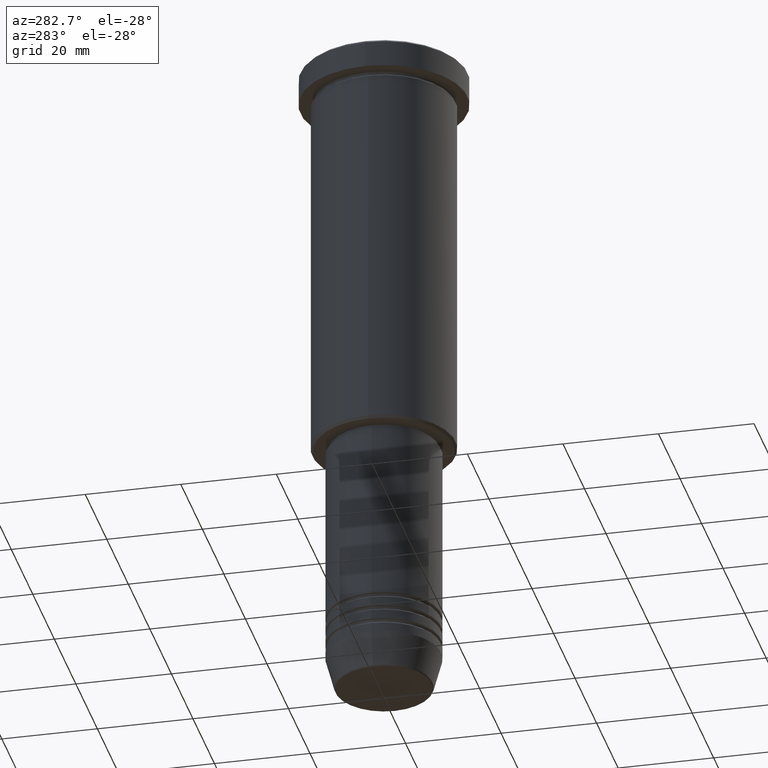
[diagram: clean part render]
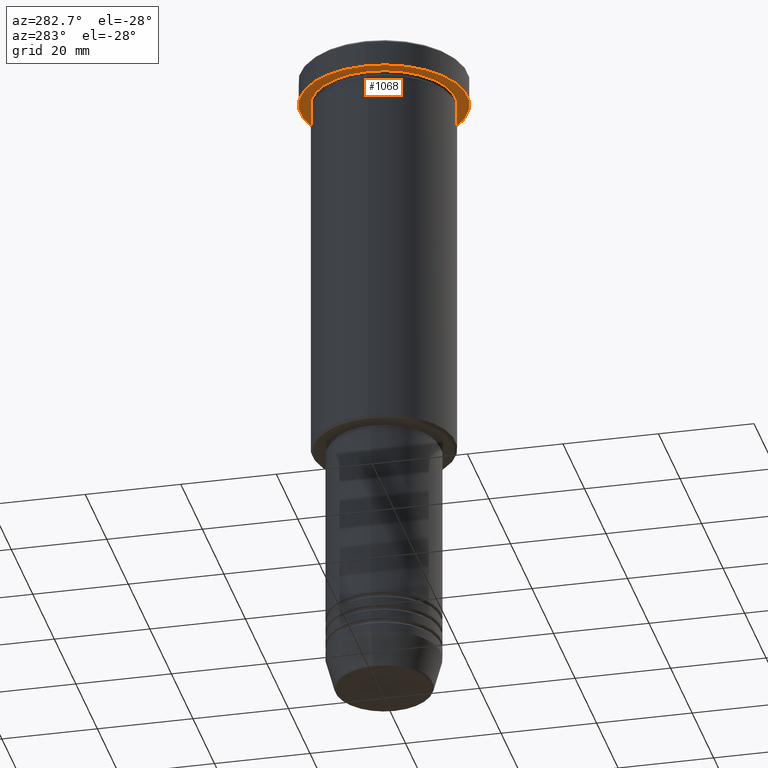
[diagram: same view with one face highlighted and labeled with its STEP entity id]
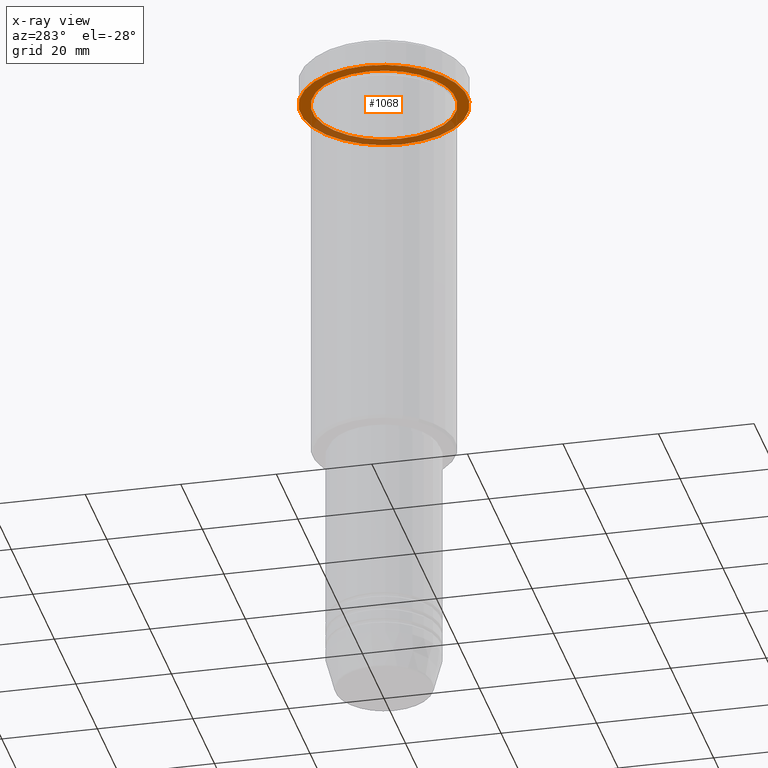
[diagram: x-ray of the same camera — body ghosted, the highlighted face saturated]
A machine part, auxiliary view. The second image highlights one B-rep face of the part: STEP entity #1068.
The next image is the same camera in x-ray: the body ghosted, the highlighted face saturated — about 34% of this face is hidden behind the body in this view.
In plain terms, the highlighted planar face has unit normal (0, 0, -1).
Its self-contained STEP definition (entity closure, byte-faithful):
#45 = CARTESIAN_POINT ( 'NONE',  ( 0.000000000000000000, 0.000000000000000000, -5.999999999999995559 ) ) ;
#53 = CIRCLE ( 'NONE', #548, 17.50000000000000000 ) ;
#78 = FACE_BOUND ( 'NONE', #272, .T. ) ;
#105 = AXIS2_PLACEMENT_3D ( 'NONE', #410, #223, #961 ) ;
#133 = ORIENTED_EDGE ( 'NONE', *, *, #504, .T. ) ;
#154 = DIRECTION ( 'NONE',  ( -0.000000000000000000, -0.000000000000000000, 1.000000000000000000 ) ) ;
#162 = CARTESIAN_POINT ( 'NONE',  ( 0.000000000000000000, 17.50000000000000000, -5.999999999999995559 ) ) ;
#170 = AXIS2_PLACEMENT_3D ( 'NONE', #162, #526, #365 ) ;
#221 = CIRCLE ( 'NONE', #1043, 15.00000000000000000 ) ;
#223 = DIRECTION ( 'NONE',  ( -0.000000000000000000, -0.000000000000000000, 1.000000000000000000 ) ) ;
#228 = VERTEX_POINT ( 'NONE', #402 ) ;
#232 = VERTEX_POINT ( 'NONE', #686 ) ;
#272 = EDGE_LOOP ( 'NONE', ( #133, #385 ) ) ;
#274 = ORIENTED_EDGE ( 'NONE', *, *, #1130, .F. ) ;
#365 = DIRECTION ( 'NONE',  ( -1.000000000000000000, 0.000000000000000000, -0.000000000000000000 ) ) ;
#385 = ORIENTED_EDGE ( 'NONE', *, *, #883, .T. ) ;
#402 = CARTESIAN_POINT ( 'NONE',  ( 17.50000000000000000, 0.000000000000000000, -5.999999999999995559 ) ) ;
#410 = CARTESIAN_POINT ( 'NONE',  ( 0.000000000000000000, 0.000000000000000000, -5.999999999999995559 ) ) ;
#437 = FACE_OUTER_BOUND ( 'NONE', #618, .T. ) ;
#504 = EDGE_CURVE ( 'NONE', #1179, #823, #221, .T. ) ;
#521 = PLANE ( 'NONE',  #170 ) ;
#526 = DIRECTION ( 'NONE',  ( 0.000000000000000000, 0.000000000000000000, -1.000000000000000000 ) ) ;
#548 = AXIS2_PLACEMENT_3D ( 'NONE', #45, #864, #879 ) ;
#554 = DIRECTION ( 'NONE',  ( -1.000000000000000000, 0.000000000000000000, 0.000000000000000000 ) ) ;
#559 = CARTESIAN_POINT ( 'NONE',  ( -15.00000000000000000, 0.000000000000000000, -5.999999999999994671 ) ) ;
#618 = EDGE_LOOP ( 'NONE', ( #905, #274 ) ) ;
#625 = AXIS2_PLACEMENT_3D ( 'NONE', #975, #154, #804 ) ;
#686 = CARTESIAN_POINT ( 'NONE',  ( -17.50000000000000000, 2.143131898507868248E-15, -5.999999999999995559 ) ) ;
#725 = EDGE_CURVE ( 'NONE', #228, #232, #53, .T. ) ;
#754 = CIRCLE ( 'NONE', #105, 15.00000000000000000 ) ;
#791 = CARTESIAN_POINT ( 'NONE',  ( 15.00000000000000000, 1.836970198721029589E-15, -5.999999999999994671 ) ) ;
#804 = DIRECTION ( 'NONE',  ( 1.000000000000000000, 0.000000000000000000, 0.000000000000000000 ) ) ;
#823 = VERTEX_POINT ( 'NONE', #791 ) ;
#830 = CARTESIAN_POINT ( 'NONE',  ( 0.000000000000000000, 0.000000000000000000, -5.999999999999995559 ) ) ;
#864 = DIRECTION ( 'NONE',  ( -0.000000000000000000, -0.000000000000000000, 1.000000000000000000 ) ) ;
#879 = DIRECTION ( 'NONE',  ( 1.000000000000000000, 0.000000000000000000, 0.000000000000000000 ) ) ;
#883 = EDGE_CURVE ( 'NONE', #823, #1179, #754, .T. ) ;
#905 = ORIENTED_EDGE ( 'NONE', *, *, #725, .F. ) ;
#933 = DIRECTION ( 'NONE',  ( -0.000000000000000000, -0.000000000000000000, 1.000000000000000000 ) ) ;
#961 = DIRECTION ( 'NONE',  ( -1.000000000000000000, 0.000000000000000000, 0.000000000000000000 ) ) ;
#975 = CARTESIAN_POINT ( 'NONE',  ( 0.000000000000000000, 0.000000000000000000, -5.999999999999995559 ) ) ;
#1043 = AXIS2_PLACEMENT_3D ( 'NONE', #830, #933, #554 ) ;
#1068 = ADVANCED_FACE ( 'NONE', ( #78, #437 ), #521, .T. ) ;
#1130 = EDGE_CURVE ( 'NONE', #232, #228, #1141, .T. ) ;
#1141 = CIRCLE ( 'NONE', #625, 17.50000000000000000 ) ;
#1179 = VERTEX_POINT ( 'NONE', #559 ) ;